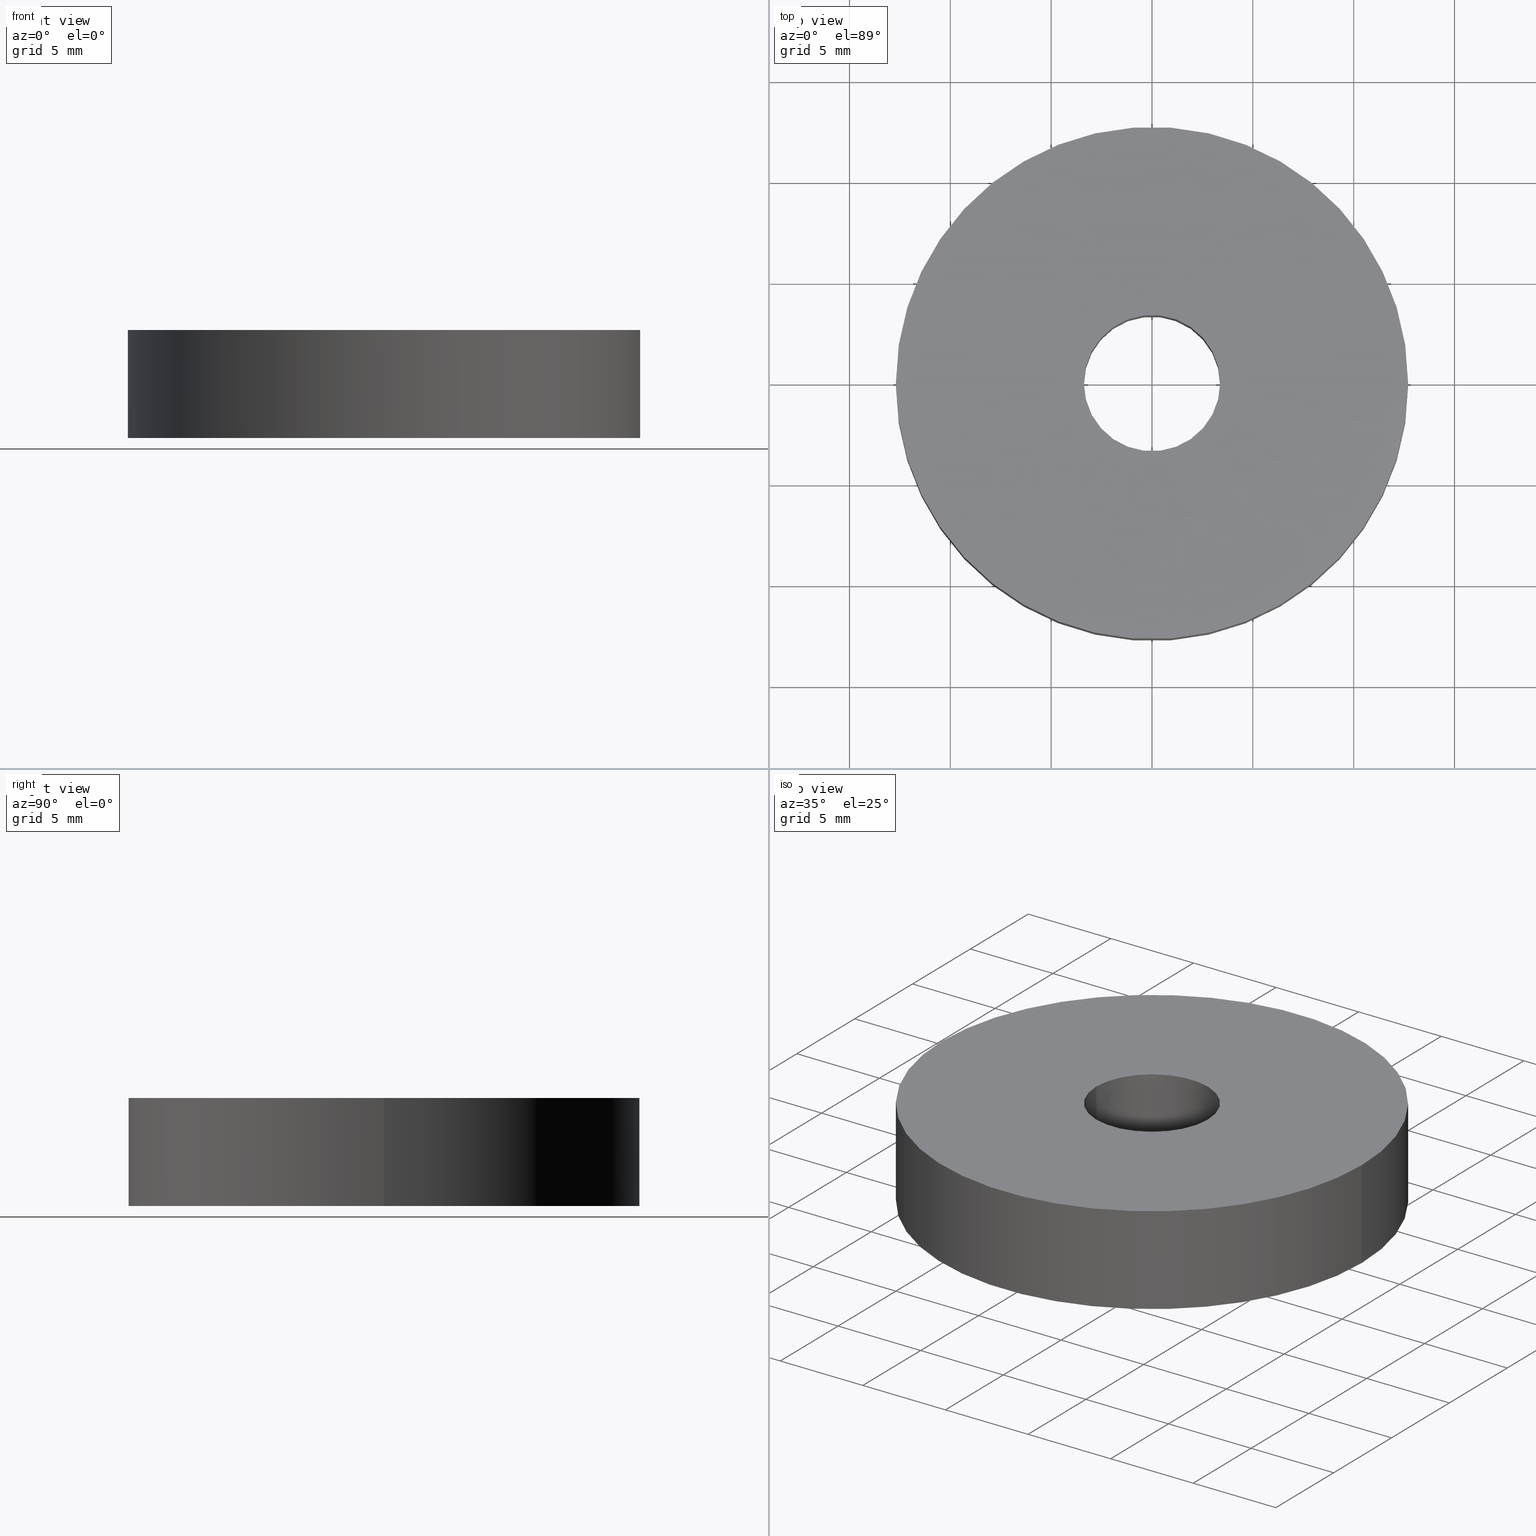
[diagram: canonical four-view strip — front | top / right | iso, engineering-drawing reading convention]
A machine part, canonical four-view strip (front | top / right | iso — engineering-drawing reading convention). The complete STEP part file that produces these views, byte-faithful:
ISO-10303-21;
HEADER;
FILE_DESCRIPTION (( 'STEP AP203' ),
    '1' );
FILE_NAME ('D030078-v2_aLIGO_SUS_HSTS_20g Addon Mass.STEP',
    '2010-06-10T22:04:44',
    ( 'Dwayne Giardina' ),
    ( 'CA Institute of Technology' ),
    'SwSTEP 2.0',
    'SolidWorks 2009',
    '' );
FILE_SCHEMA (( 'CONFIG_CONTROL_DESIGN' ));
ENDSEC;

DATA;
#1 = CIRCLE ( 'NONE', #199, 3.378199999999987700 ) ;
#2 = APPROVAL_PERSON_ORGANIZATION ( #4, #208, #162 ) ;
#3 = DATE_AND_TIME ( #59, #17 ) ;
#4 = PERSON_AND_ORGANIZATION ( #248, #28 ) ;
#5 = ORIENTED_EDGE ( 'NONE', *, *, #166, .F. ) ;
#6 = CYLINDRICAL_SURFACE ( 'NONE', #176, 3.378199999999993400 ) ;
#7 = PERSON_AND_ORGANIZATION ( #248, #28 ) ;
#8 = PERSON_AND_ORGANIZATION ( #248, #28 ) ;
#9 = SECURITY_CLASSIFICATION ( '', '', #158 ) ;
#10 = CIRCLE ( 'NONE', #198, 12.69999999999999900 ) ;
#11 = CIRCLE ( 'NONE', #202, 3.378199999999999200 ) ;
#12 = PERSON_AND_ORGANIZATION ( #248, #28 ) ;
#13 = DATE_AND_TIME ( #35, #55 ) ;
#14 = COORDINATED_UNIVERSAL_TIME_OFFSET ( 6, 0, .BEHIND. ) ;
#15 = PERSON_AND_ORGANIZATION ( #248, #28 ) ;
#16 = CYLINDRICAL_SURFACE ( 'NONE', #187, 3.378199999999993400 ) ;
#17 = LOCAL_TIME ( 17, 4, 44.00000000000000000, #45 ) ;
#18 = APPROVAL_PERSON_ORGANIZATION ( #20, #185, #151 ) ;
#19 = CALENDAR_DATE ( 2010, 10, 6 ) ;
#20 = PERSON_AND_ORGANIZATION ( #248, #28 ) ;
#21 = LOCAL_TIME ( 17, 4, 44.00000000000000000, #42 ) ;
#22 = APPROVAL_DATE_TIME ( #36, #185 ) ;
#23 = DATE_AND_TIME ( #52, #46 ) ;
#24 = SHAPE_DEFINITION_REPRESENTATION ( #164, #216 ) ;
#25 = VECTOR ( 'NONE', #98, 1000.000000000000000 ) ;
#26 = CIRCLE ( 'NONE', #191, 12.69999999999999900 ) ;
#27 =( GEOMETRIC_REPRESENTATION_CONTEXT ( 3 ) GLOBAL_UNCERTAINTY_ASSIGNED_CONTEXT ( ( #217 ) ) GLOBAL_UNIT_ASSIGNED_CONTEXT ( ( #138, #139, #140 ) ) REPRESENTATION_CONTEXT ( 'NONE', 'WORKASPACE' ) );
#28 = ORGANIZATION ( 'UNSPECIFIED', 'UNSPECIFIED', '' ) ;
#29 = PERSON_AND_ORGANIZATION ( #248, #28 ) ;
#30 = COORDINATED_UNIVERSAL_TIME_OFFSET ( 6, 0, .BEHIND. ) ;
#31 = LOCAL_TIME ( 17, 4, 44.00000000000000000, #30 ) ;
#32 = APPROVAL_DATE_TIME ( #23, #180 ) ;
#33 = CALENDAR_DATE ( 2010, 10, 6 ) ;
#34 = DATE_AND_TIME ( #33, #31 ) ;
#35 = CALENDAR_DATE ( 2010, 10, 6 ) ;
#36 = DATE_AND_TIME ( #19, #21 ) ;
#37 = APPROVAL_DATE_TIME ( #13, #208 ) ;
#38 = FACE_OUTER_BOUND ( 'NONE', #226, .T. ) ;
#39 = CLOSED_SHELL ( 'NONE', ( #210, #212, #211, #214, #213, #209 ) ) ;
#40 = FACE_BOUND ( 'NONE', #225, .T. ) ;
#41 = FACE_OUTER_BOUND ( 'NONE', #224, .T. ) ;
#42 = COORDINATED_UNIVERSAL_TIME_OFFSET ( 6, 0, .BEHIND. ) ;
#43 = FACE_BOUND ( 'NONE', #228, .T. ) ;
#44 = APPROVAL_PERSON_ORGANIZATION ( #64, #180, #155 ) ;
#45 = COORDINATED_UNIVERSAL_TIME_OFFSET ( 6, 0, .BEHIND. ) ;
#46 = LOCAL_TIME ( 17, 4, 44.00000000000000000, #65 ) ;
#47 = CYLINDRICAL_SURFACE ( 'NONE', #189, 12.69999999999999900 ) ;
#48 = FACE_OUTER_BOUND ( 'NONE', #221, .T. ) ;
#49 = FACE_OUTER_BOUND ( 'NONE', #233, .T. ) ;
#50 = CIRCLE ( 'NONE', #193, 3.378199999999999200 ) ;
#51 = CIRCLE ( 'NONE', #201, 12.69999999999999900 ) ;
#52 = CALENDAR_DATE ( 2010, 10, 6 ) ;
#53 = LINE ( 'NONE', #102, #60 ) ;
#54 = FACE_OUTER_BOUND ( 'NONE', #232, .T. ) ;
#55 = LOCAL_TIME ( 17, 4, 44.00000000000000000, #14 ) ;
#56 = LINE ( 'NONE', #95, #58 ) ;
#57 = CIRCLE ( 'NONE', #196, 12.69999999999999900 ) ;
#58 = VECTOR ( 'NONE', #96, 1000.000000000000000 ) ;
#59 = CALENDAR_DATE ( 2010, 10, 6 ) ;
#60 = VECTOR ( 'NONE', #103, 1000.000000000000000 ) ;
#61 = CIRCLE ( 'NONE', #195, 3.378199999999987700 ) ;
#62 = CYLINDRICAL_SURFACE ( 'NONE', #181, 12.69999999999999900 ) ;
#63 = LINE ( 'NONE', #97, #25 ) ;
#64 = PERSON_AND_ORGANIZATION ( #248, #28 ) ;
#65 = COORDINATED_UNIVERSAL_TIME_OFFSET ( 6, 0, .BEHIND. ) ;
#66 = FACE_OUTER_BOUND ( 'NONE', #229, .T. ) ;
#67 = VECTOR ( 'NONE', #105, 1000.000000000000000 ) ;
#68 = LINE ( 'NONE', #104, #67 ) ;
#69 = ORIENTED_EDGE ( 'NONE', *, *, #170, .T. ) ;
#70 = VERTEX_POINT ( 'NONE', #78 ) ;
#71 = VERTEX_POINT ( 'NONE', #79 ) ;
#72 = VERTEX_POINT ( 'NONE', #80 ) ;
#73 = VERTEX_POINT ( 'NONE', #81 ) ;
#74 = VERTEX_POINT ( 'NONE', #82 ) ;
#75 = VERTEX_POINT ( 'NONE', #83 ) ;
#76 = VERTEX_POINT ( 'NONE', #84 ) ;
#77 = VERTEX_POINT ( 'NONE', #85 ) ;
#78 = CARTESIAN_POINT ( 'NONE',  ( 12.69999999999999900, 0.0000000000000000000, -5.349999999999999600 ) ) ;
#79 = CARTESIAN_POINT ( 'NONE',  ( -3.378199999999999600, 4.137101816879588000E-016, -5.349999999999999600 ) ) ;
#80 = CARTESIAN_POINT ( 'NONE',  ( 3.378199999999999200, 0.0000000000000000000, -5.349999999999999600 ) ) ;
#81 = CARTESIAN_POINT ( 'NONE',  ( -3.378199999999987700, 4.137101816879577200E-016, 1.141591253229177300E-015 ) ) ;
#82 = CARTESIAN_POINT ( 'NONE',  ( 3.378199999999987700, 0.0000000000000000000, 1.141591253229177300E-015 ) ) ;
#83 = CARTESIAN_POINT ( 'NONE',  ( -12.69999999999999900, 1.555301434917138400E-015, -5.349999999999999600 ) ) ;
#84 = CARTESIAN_POINT ( 'NONE',  ( -12.69999999999999900, 1.555301434917138400E-015, 0.0000000000000000000 ) ) ;
#85 = CARTESIAN_POINT ( 'NONE',  ( 12.69999999999999900, 0.0000000000000000000, 0.0000000000000000000 ) ) ;
#86 = CARTESIAN_POINT ( 'NONE',  ( 0.0000000000000000000, 0.0000000000000000000, -5.349999999999999600 ) ) ;
#87 = DIRECTION ( 'NONE',  ( -0.0000000000000000000, -0.0000000000000000000, 1.000000000000000000 ) ) ;
#88 = DIRECTION ( 'NONE',  ( 1.000000000000000000, 0.0000000000000000000, 0.0000000000000000000 ) ) ;
#89 = CARTESIAN_POINT ( 'NONE',  ( 0.0000000000000000000, 0.0000000000000000000, 1.141591253229177300E-015 ) ) ;
#90 = DIRECTION ( 'NONE',  ( -0.0000000000000000000, -0.0000000000000000000, 1.000000000000000000 ) ) ;
#91 = DIRECTION ( 'NONE',  ( 1.000000000000000000, 0.0000000000000000000, 0.0000000000000000000 ) ) ;
#92 = CARTESIAN_POINT ( 'NONE',  ( 0.0000000000000000000, 0.0000000000000000000, -5.349999999999999600 ) ) ;
#93 = DIRECTION ( 'NONE',  ( 0.0000000000000000000, 0.0000000000000000000, 1.000000000000000000 ) ) ;
#94 = DIRECTION ( 'NONE',  ( 1.000000000000000000, 0.0000000000000000000, 0.0000000000000000000 ) ) ;
#95 = CARTESIAN_POINT ( 'NONE',  ( -12.69999999999999900, 1.555301434917138400E-015, -5.349999999999999600 ) ) ;
#96 = DIRECTION ( 'NONE',  ( 0.0000000000000000000, 0.0000000000000000000, 1.000000000000000000 ) ) ;
#97 = CARTESIAN_POINT ( 'NONE',  ( 12.69999999999999900, 0.0000000000000000000, -5.349999999999999600 ) ) ;
#98 = DIRECTION ( 'NONE',  ( 0.0000000000000000000, 0.0000000000000000000, 1.000000000000000000 ) ) ;
#99 = CARTESIAN_POINT ( 'NONE',  ( 0.0000000000000000000, 0.0000000000000000000, 0.0000000000000000000 ) ) ;
#100 = DIRECTION ( 'NONE',  ( 0.0000000000000000000, 0.0000000000000000000, 1.000000000000000000 ) ) ;
#101 = DIRECTION ( 'NONE',  ( 1.000000000000000000, 0.0000000000000000000, 0.0000000000000000000 ) ) ;
#102 = CARTESIAN_POINT ( 'NONE',  ( -3.378199999999993400, 4.137101816879580600E-016, 0.0000000000000000000 ) ) ;
#103 = DIRECTION ( 'NONE',  ( -0.0000000000000000000, -0.0000000000000000000, 1.000000000000000000 ) ) ;
#104 = CARTESIAN_POINT ( 'NONE',  ( 3.378199999999993400, 0.0000000000000000000, 0.0000000000000000000 ) ) ;
#105 = DIRECTION ( 'NONE',  ( -0.0000000000000000000, -0.0000000000000000000, 1.000000000000000000 ) ) ;
#106 = CARTESIAN_POINT ( 'NONE',  ( 0.0000000000000000000, 0.0000000000000000000, 1.141591253229177300E-015 ) ) ;
#107 = DIRECTION ( 'NONE',  ( -0.0000000000000000000, -0.0000000000000000000, 1.000000000000000000 ) ) ;
#108 = DIRECTION ( 'NONE',  ( 1.000000000000000000, 0.0000000000000000000, 0.0000000000000000000 ) ) ;
#109 = CARTESIAN_POINT ( 'NONE',  ( 0.0000000000000000000, 0.0000000000000000000, 0.0000000000000000000 ) ) ;
#110 = DIRECTION ( 'NONE',  ( 0.0000000000000000000, 0.0000000000000000000, 1.000000000000000000 ) ) ;
#111 = DIRECTION ( 'NONE',  ( 1.000000000000000000, 0.0000000000000000000, 0.0000000000000000000 ) ) ;
#112 = CARTESIAN_POINT ( 'NONE',  ( 0.0000000000000000000, 0.0000000000000000000, -5.349999999999999600 ) ) ;
#113 = DIRECTION ( 'NONE',  ( 0.0000000000000000000, 0.0000000000000000000, 1.000000000000000000 ) ) ;
#114 = DIRECTION ( 'NONE',  ( 1.000000000000000000, 0.0000000000000000000, 0.0000000000000000000 ) ) ;
#115 = CARTESIAN_POINT ( 'NONE',  ( 0.0000000000000000000, 0.0000000000000000000, -5.349999999999999600 ) ) ;
#116 = DIRECTION ( 'NONE',  ( -0.0000000000000000000, -0.0000000000000000000, 1.000000000000000000 ) ) ;
#117 = DIRECTION ( 'NONE',  ( 1.000000000000000000, 0.0000000000000000000, 0.0000000000000000000 ) ) ;
#118 = CARTESIAN_POINT ( 'NONE',  ( 0.0000000000000000000, 0.0000000000000000000, 0.0000000000000000000 ) ) ;
#119 = DIRECTION ( 'NONE',  ( -0.0000000000000000000, -0.0000000000000000000, 1.000000000000000000 ) ) ;
#120 = DIRECTION ( 'NONE',  ( 1.000000000000000000, 0.0000000000000000000, 0.0000000000000000000 ) ) ;
#121 = CARTESIAN_POINT ( 'NONE',  ( 0.0000000000000000000, 0.0000000000000000000, 0.0000000000000000000 ) ) ;
#122 = DIRECTION ( 'NONE',  ( -0.0000000000000000000, -0.0000000000000000000, 1.000000000000000000 ) ) ;
#123 = DIRECTION ( 'NONE',  ( 1.000000000000000000, 0.0000000000000000000, 0.0000000000000000000 ) ) ;
#124 = CARTESIAN_POINT ( 'NONE',  ( 0.0000000000000000000, 0.0000000000000000000, -5.349999999999999600 ) ) ;
#125 = DIRECTION ( 'NONE',  ( 0.0000000000000000000, 0.0000000000000000000, 1.000000000000000000 ) ) ;
#126 = DIRECTION ( 'NONE',  ( 1.000000000000000000, 0.0000000000000000000, 0.0000000000000000000 ) ) ;
#127 = CARTESIAN_POINT ( 'NONE',  ( 0.0000000000000000000, 0.0000000000000000000, -5.349999999999999600 ) ) ;
#128 = DIRECTION ( 'NONE',  ( 0.0000000000000000000, 0.0000000000000000000, 1.000000000000000000 ) ) ;
#129 = DIRECTION ( 'NONE',  ( 1.000000000000000000, 0.0000000000000000000, 0.0000000000000000000 ) ) ;
#130 = PLANE ( 'NONE',  #179 ) ;
#131 = CARTESIAN_POINT ( 'NONE',  ( 0.0000000000000000000, 0.0000000000000000000, 0.0000000000000000000 ) ) ;
#132 = DIRECTION ( 'NONE',  ( 0.0000000000000000000, 0.0000000000000000000, 1.000000000000000000 ) ) ;
#133 = DIRECTION ( 'NONE',  ( 1.000000000000000000, 0.0000000000000000000, -0.0000000000000000000 ) ) ;
#134 = PLANE ( 'NONE',  #188 ) ;
#135 = CARTESIAN_POINT ( 'NONE',  ( 0.0000000000000000000, 0.0000000000000000000, -5.349999999999999600 ) ) ;
#136 = DIRECTION ( 'NONE',  ( 0.0000000000000000000, 0.0000000000000000000, 1.000000000000000000 ) ) ;
#137 = DIRECTION ( 'NONE',  ( 1.000000000000000000, 0.0000000000000000000, -0.0000000000000000000 ) ) ;
#138 =( LENGTH_UNIT ( ) NAMED_UNIT ( * ) SI_UNIT ( .MILLI., .METRE. ) );
#139 =( NAMED_UNIT ( * ) PLANE_ANGLE_UNIT ( ) SI_UNIT ( $, .RADIAN. ) );
#140 =( NAMED_UNIT ( * ) SI_UNIT ( $, .STERADIAN. ) SOLID_ANGLE_UNIT ( ) );
#141 = CARTESIAN_POINT ( 'NONE',  ( 0.0000000000000000000, 0.0000000000000000000, 0.0000000000000000000 ) ) ;
#142 = DIRECTION ( 'NONE',  ( 0.0000000000000000000, 0.0000000000000000000, 1.000000000000000000 ) ) ;
#143 = DIRECTION ( 'NONE',  ( 1.000000000000000000, 0.0000000000000000000, 0.0000000000000000000 ) ) ;
#144 = APPLICATION_CONTEXT ( 'configuration controlled 3d designs of mechanical parts and assemblies' ) ;
#145 = APPLICATION_PROTOCOL_DEFINITION ( 'international standard', 'config_control_design', 1994, #144 ) ;
#146 = MECHANICAL_CONTEXT ( 'NONE', #144, 'mechanical' ) ;
#147 = PERSON_AND_ORGANIZATION_ROLE ( 'design_owner' ) ;
#148 = APPLICATION_CONTEXT ( 'configuration controlled 3d designs of mechanical parts and assemblies' ) ;
#149 = APPLICATION_PROTOCOL_DEFINITION ( 'international standard', 'config_control_design', 1994, #148 ) ;
#150 = APPROVAL_STATUS ( 'not_yet_approved' ) ;
#151 = APPROVAL_ROLE ( '' ) ;
#152 = PERSON_AND_ORGANIZATION_ROLE ( 'creator' ) ;
#153 = DATE_TIME_ROLE ( 'creation_date' ) ;
#154 = APPROVAL_STATUS ( 'not_yet_approved' ) ;
#155 = APPROVAL_ROLE ( '' ) ;
#156 = PERSON_AND_ORGANIZATION_ROLE ( 'creator' ) ;
#157 = PERSON_AND_ORGANIZATION_ROLE ( 'design_supplier' ) ;
#158 = SECURITY_CLASSIFICATION_LEVEL ( 'unclassified' ) ;
#159 = PERSON_AND_ORGANIZATION_ROLE ( 'classification_officer' ) ;
#160 = DATE_TIME_ROLE ( 'classification_date' ) ;
#161 = APPROVAL_STATUS ( 'not_yet_approved' ) ;
#162 = APPROVAL_ROLE ( '' ) ;
#163 = DESIGN_CONTEXT ( 'detailed design', #148, 'design' ) ;
#164 = PRODUCT_DEFINITION_SHAPE ( 'NONE', 'NONE',  #182 ) ;
#165 = EDGE_CURVE ( 'NONE', #72, #71, #50, .T. ) ;
#166 = EDGE_CURVE ( 'NONE', #73, #74, #1, .T. ) ;
#167 = EDGE_CURVE ( 'NONE', #70, #75, #57, .T. ) ;
#168 = EDGE_CURVE ( 'NONE', #75, #76, #56, .T. ) ;
#169 = EDGE_CURVE ( 'NONE', #70, #77, #63, .T. ) ;
#170 = EDGE_CURVE ( 'NONE', #77, #76, #51, .T. ) ;
#171 = EDGE_CURVE ( 'NONE', #71, #73, #53, .T. ) ;
#172 = CC_DESIGN_APPROVAL ( #208, ( #9 ) ) ;
#173 = PRODUCT_DEFINITION_FORMATION_WITH_SPECIFIED_SOURCE ( 'ANY', '', #249, .NOT_KNOWN. ) ;
#174 = CC_DESIGN_APPROVAL ( #180, ( #173 ) ) ;
#175 = CC_DESIGN_PERSON_AND_ORGANIZATION_ASSIGNMENT ( #29, #147, ( #249 ) ) ;
#176 = AXIS2_PLACEMENT_3D ( 'NONE', #121, #122, #123 ) ;
#177 = PRODUCT_RELATED_PRODUCT_CATEGORY ( 'detail', '', ( #249 ) ) ;
#178 = CC_DESIGN_PERSON_AND_ORGANIZATION_ASSIGNMENT ( #15, #152, ( #182 ) ) ;
#179 = AXIS2_PLACEMENT_3D ( 'NONE', #131, #132, #133 ) ;
#180 = APPROVAL ( #154, 'UNSPECIFIED' ) ;
#181 = AXIS2_PLACEMENT_3D ( 'NONE', #127, #128, #129 ) ;
#182 = PRODUCT_DEFINITION ( 'UNKNOWN', '', #173, #163 ) ;
#183 = CC_DESIGN_SECURITY_CLASSIFICATION ( #9, ( #173 ) ) ;
#184 = CC_DESIGN_PERSON_AND_ORGANIZATION_ASSIGNMENT ( #7, #157, ( #173 ) ) ;
#185 = APPROVAL ( #150, 'UNSPECIFIED' ) ;
#186 = AXIS2_PLACEMENT_3D ( 'NONE', #141, #142, #143 ) ;
#187 = AXIS2_PLACEMENT_3D ( 'NONE', #118, #119, #120 ) ;
#188 = AXIS2_PLACEMENT_3D ( 'NONE', #135, #136, #137 ) ;
#189 = AXIS2_PLACEMENT_3D ( 'NONE', #124, #125, #126 ) ;
#190 = EDGE_CURVE ( 'NONE', #72, #74, #68, .T. ) ;
#191 = AXIS2_PLACEMENT_3D ( 'NONE', #112, #113, #114 ) ;
#192 = EDGE_CURVE ( 'NONE', #74, #73, #61, .T. ) ;
#193 = AXIS2_PLACEMENT_3D ( 'NONE', #86, #87, #88 ) ;
#194 = EDGE_CURVE ( 'NONE', #76, #77, #10, .T. ) ;
#195 = AXIS2_PLACEMENT_3D ( 'NONE', #106, #107, #108 ) ;
#196 = AXIS2_PLACEMENT_3D ( 'NONE', #92, #93, #94 ) ;
#197 = EDGE_CURVE ( 'NONE', #75, #70, #26, .T. ) ;
#198 = AXIS2_PLACEMENT_3D ( 'NONE', #109, #110, #111 ) ;
#199 = AXIS2_PLACEMENT_3D ( 'NONE', #89, #90, #91 ) ;
#200 = EDGE_CURVE ( 'NONE', #71, #72, #11, .T. ) ;
#201 = AXIS2_PLACEMENT_3D ( 'NONE', #99, #100, #101 ) ;
#202 = AXIS2_PLACEMENT_3D ( 'NONE', #115, #116, #117 ) ;
#203 = CC_DESIGN_APPROVAL ( #185, ( #182 ) ) ;
#204 = CC_DESIGN_DATE_AND_TIME_ASSIGNMENT ( #34, #153, ( #182 ) ) ;
#205 = CC_DESIGN_PERSON_AND_ORGANIZATION_ASSIGNMENT ( #8, #159, ( #9 ) ) ;
#206 = CC_DESIGN_PERSON_AND_ORGANIZATION_ASSIGNMENT ( #12, #156, ( #173 ) ) ;
#207 = CC_DESIGN_DATE_AND_TIME_ASSIGNMENT ( #3, #160, ( #9 ) ) ;
#208 = APPROVAL ( #161, 'UNSPECIFIED' ) ;
#209 = ADVANCED_FACE ( 'NONE', ( #48 ), #16, .F. ) ;
#210 = ADVANCED_FACE ( 'NONE', ( #54 ), #6, .F. ) ;
#211 = ADVANCED_FACE ( 'NONE', ( #66 ), #47, .T. ) ;
#212 = ADVANCED_FACE ( 'NONE', ( #49 ), #62, .T. ) ;
#213 = ADVANCED_FACE ( 'NONE', ( #43, #41 ), #130, .T. ) ;
#214 = ADVANCED_FACE ( 'NONE', ( #40, #38 ), #134, .F. ) ;
#215 = MANIFOLD_SOLID_BREP ( 'NONE', #39 ) ;
#216 = ADVANCED_BREP_SHAPE_REPRESENTATION ( 'D030078-v2_aLIGO_SUS_HSTS_20g Addon Mass', ( #215, #186 ), #27 ) ;
#217 = UNCERTAINTY_MEASURE_WITH_UNIT (LENGTH_MEASURE( 1.000000000000000100E-005 ), #138, 'distance_accuracy_value', 'NONE');
#218 = ORIENTED_EDGE ( 'NONE', *, *, #168, .F. ) ;
#219 = ORIENTED_EDGE ( 'NONE', *, *, #200, .F. ) ;
#220 = ORIENTED_EDGE ( 'NONE', *, *, #167, .T. ) ;
#221 = EDGE_LOOP ( 'NONE', ( #243, #244, #227, #235 ) ) ;
#222 = ORIENTED_EDGE ( 'NONE', *, *, #197, .T. ) ;
#223 = ORIENTED_EDGE ( 'NONE', *, *, #200, .T. ) ;
#224 = EDGE_LOOP ( 'NONE', ( #69, #247 ) ) ;
#225 = EDGE_LOOP ( 'NONE', ( #239, #223 ) ) ;
#226 = EDGE_LOOP ( 'NONE', ( #242, #240 ) ) ;
#227 = ORIENTED_EDGE ( 'NONE', *, *, #190, .T. ) ;
#228 = EDGE_LOOP ( 'NONE', ( #241, #5 ) ) ;
#229 = EDGE_LOOP ( 'NONE', ( #218, #222, #234, #238 ) ) ;
#230 = ORIENTED_EDGE ( 'NONE', *, *, #169, .F. ) ;
#231 = ORIENTED_EDGE ( 'NONE', *, *, #166, .T. ) ;
#232 = EDGE_LOOP ( 'NONE', ( #219, #237, #231, #236 ) ) ;
#233 = EDGE_LOOP ( 'NONE', ( #220, #246, #245, #230 ) ) ;
#234 = ORIENTED_EDGE ( 'NONE', *, *, #169, .T. ) ;
#235 = ORIENTED_EDGE ( 'NONE', *, *, #192, .T. ) ;
#236 = ORIENTED_EDGE ( 'NONE', *, *, #190, .F. ) ;
#237 = ORIENTED_EDGE ( 'NONE', *, *, #171, .T. ) ;
#238 = ORIENTED_EDGE ( 'NONE', *, *, #194, .F. ) ;
#239 = ORIENTED_EDGE ( 'NONE', *, *, #165, .T. ) ;
#240 = ORIENTED_EDGE ( 'NONE', *, *, #197, .F. ) ;
#241 = ORIENTED_EDGE ( 'NONE', *, *, #192, .F. ) ;
#242 = ORIENTED_EDGE ( 'NONE', *, *, #167, .F. ) ;
#243 = ORIENTED_EDGE ( 'NONE', *, *, #171, .F. ) ;
#244 = ORIENTED_EDGE ( 'NONE', *, *, #165, .F. ) ;
#245 = ORIENTED_EDGE ( 'NONE', *, *, #170, .F. ) ;
#246 = ORIENTED_EDGE ( 'NONE', *, *, #168, .T. ) ;
#247 = ORIENTED_EDGE ( 'NONE', *, *, #194, .T. ) ;
#248 = PERSON ( 'UNSPECIFIED', 'UNSPECIFIED', 'UNSPECIFIED', ('UNSPECIFIED'), ('UNSPECIFIED'), ('UNSPECIFIED') ) ;
#249 = PRODUCT ( 'D030078-v2_aLIGO_SUS_HSTS_20g Addon Mass', 'D030078-v2_aLIGO_SUS_HSTS_20g Addon Mass', '', ( #146 ) ) ;
ENDSEC;
END-ISO-10303-21;
